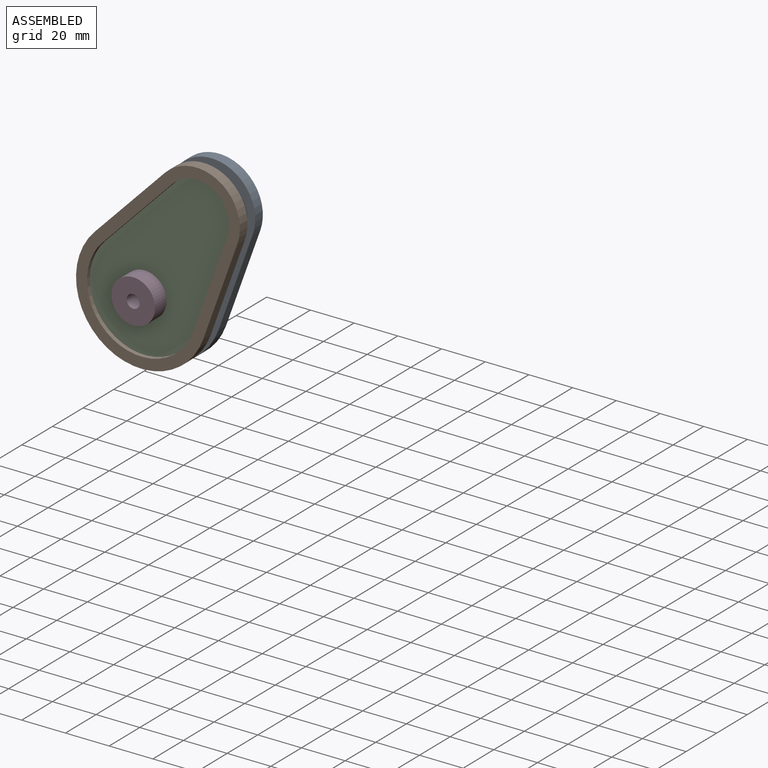
[diagram: assembled view]
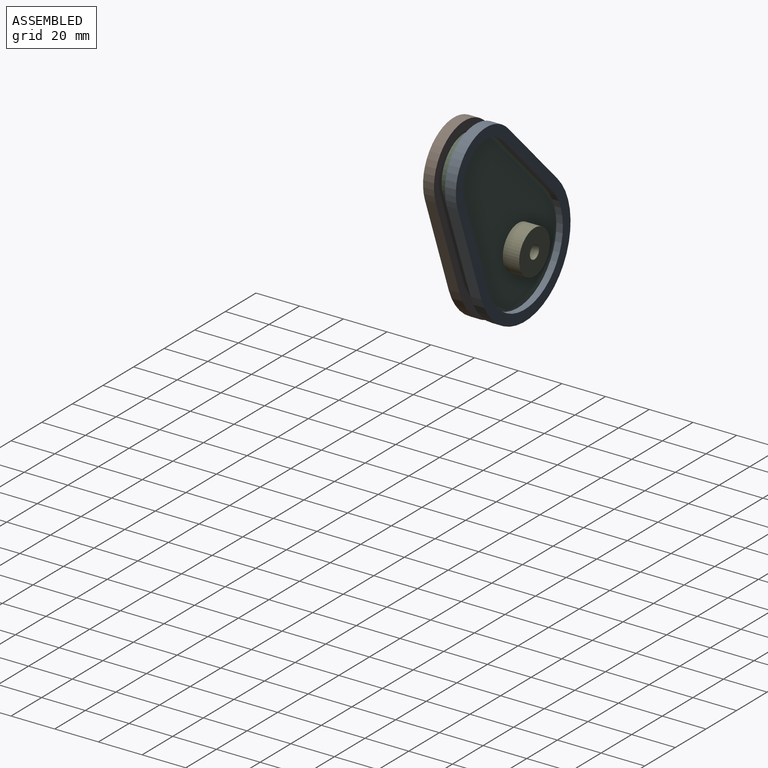
[diagram: assembled view, second angle]
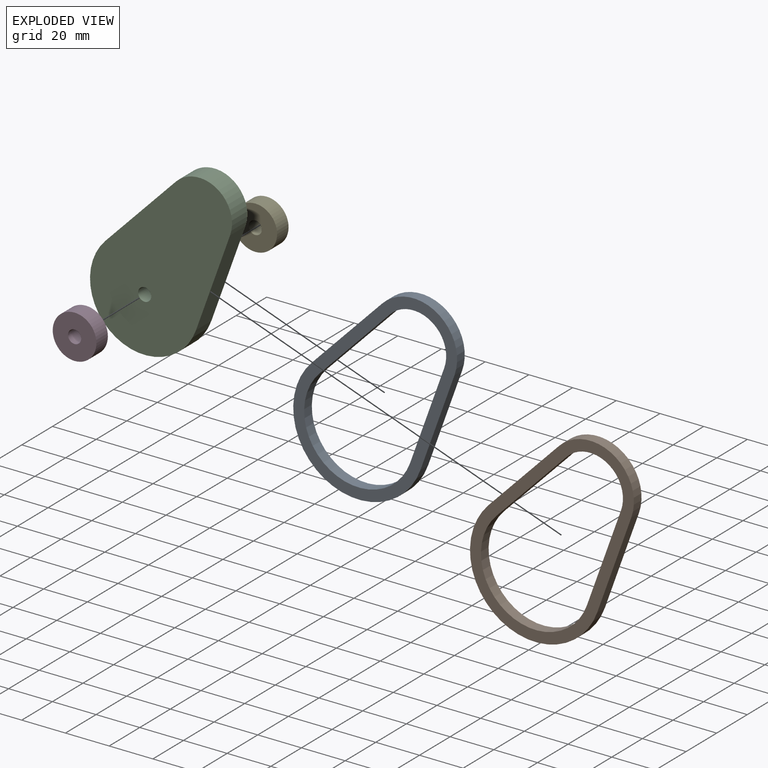
[diagram: exploded view]
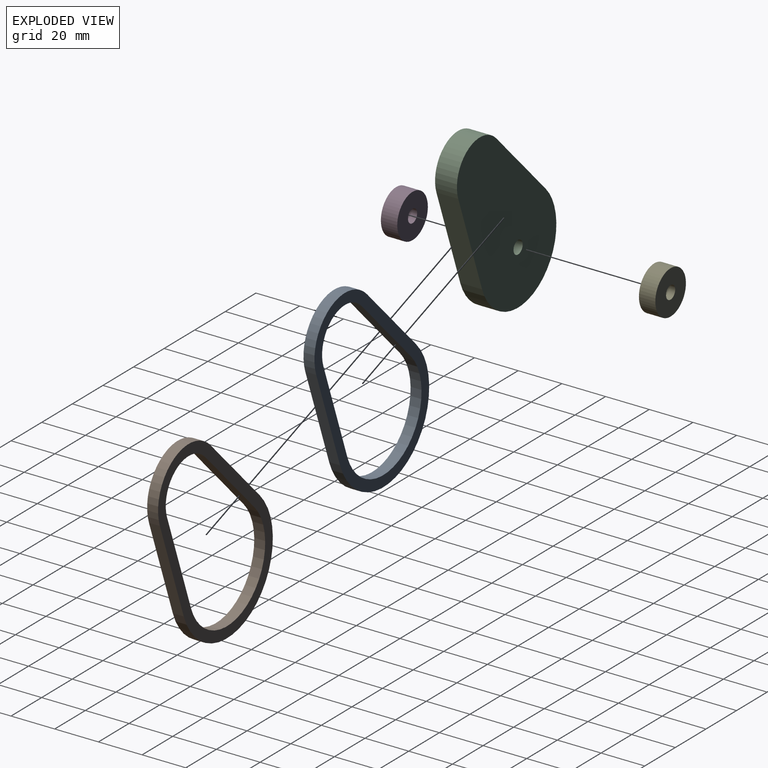
[diagram: exploded view, second angle]
ASSEMBLY  parts=5 mates=4
PART A: 10 faces, bbox 75x5x90 mm
  f0: cylinder r=30mm len=58.23mm, axis (0,1,0), area 535.3mm2, adj f1,f3,f4,f5
  f1: plane 43.38x15.59mm, normal (0.94,0,-0.34), area 230.5mm2, adj f0,f2,f4,f5
  f2: cylinder r=20mm len=34.33mm, axis (0,1,0), area 271.4mm2, adj f1,f3,f4,f5
  f3: plane 33.02x32.16mm, normal (-0.72,0,0.7), area 230.5mm2, adj f0,f2,f4,f5
  f4: plane 90x75mm, normal (0,-1,0), area 1189.2mm2, adj f0,f1,f2,f3,f6,f7,f8,f9
  f5: plane 90x75mm, normal (0,1,0), area 1189.2mm2, adj f0,f1,f2,f3,f6,f7,f8,f9
  f6: plane 33.02x32.16mm, normal (0.72,0,-0.7), area 230.5mm2, adj f4,f5,f7,f9
  f7: cylinder r=25mm len=48.53mm, axis (0,1,0), area 446.1mm2, adj f4,f5,f6,f8
  f8: plane 43.38x15.59mm, normal (-0.94,0,0.34), area 230.5mm2, adj f4,f5,f7,f9
  f9: cylinder r=15mm len=25.75mm, axis (0,1,0), area 203.6mm2, adj f4,f5,f6,f8
PART B: same geometry as A
PART C: 7 faces, bbox 65x10x80 mm
  f0: cylinder r=15mm len=25.75mm, axis (0,1,0), area 407.2mm2, adj f1,f3,f5,f6
  f1: plane 33.02x32.16mm, normal (-0.72,0,0.7), area 461mm2, adj f0,f2,f5,f6
  f2: cylinder r=25mm len=48.53mm, axis (0,1,0), area 892.2mm2, adj f1,f3,f5,f6
  f3: plane 43.38x15.59mm, normal (0.94,0,-0.34), area 461mm2, adj f0,f2,f5,f6
  f4: cylinder r=3mm len=10mm, axis (0,1,0), area 188.5mm2, adj f5,f6
  f5: plane 80x65mm, normal (0,-1,0), area 3236.3mm2, adj f0,f1,f2,f3,f4
  f6: plane 80x65mm, normal (0,1,0), area 3236.3mm2, adj f0,f1,f2,f3,f4
PART D: 4 faces, bbox 20x7.5x20 mm
  f0: cylinder r=3mm len=7.5mm, axis (0,1,0), area 141.4mm2, adj f2,f3
  f1: cylinder r=10mm len=20mm, axis (0,1,0), area 471.2mm2, adj f2,f3
  f2: plane 20x20mm, normal (0,-1,0), area 285.9mm2, adj f0,f1
  f3: plane 20x20mm, normal (0,1,0), area 285.9mm2, adj f0,f1
PART E: same geometry as D
PLACE A t=(0,19.01,0)mm
PLACE B t=(0,9.01,0)mm
PLACE C t=(0,16.01,0)mm
PLACE D t=(0,6.01,0)mm
PLACE E t=(0,23.51,0)mm
MATE fastened C.f3 <-> A.f8  axis (0.94,0,-0.34) through (31.32,16.01,13.24)mm
MATE fastened D.f0 <-> C.f4  axis (0,1,0) through (0,6.01,0)mm
MATE fastened B.f8 <-> C.f3  axis (-0.94,0,0.34) through (31.32,9.01,13.24)mm
MATE fastened E.f0 <-> C.f4  axis (0,1,0) through (0,16.01,0)mm
